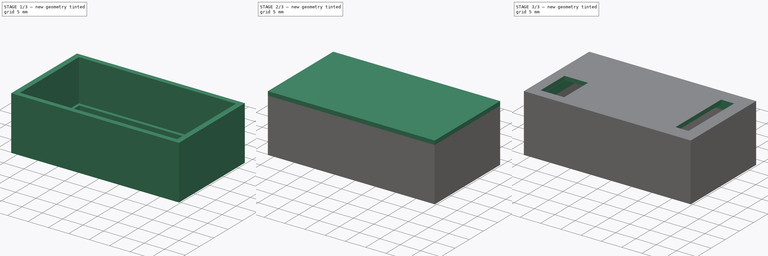
[diagram: build sequence overview — one tinted view per stage of 3, left to right]
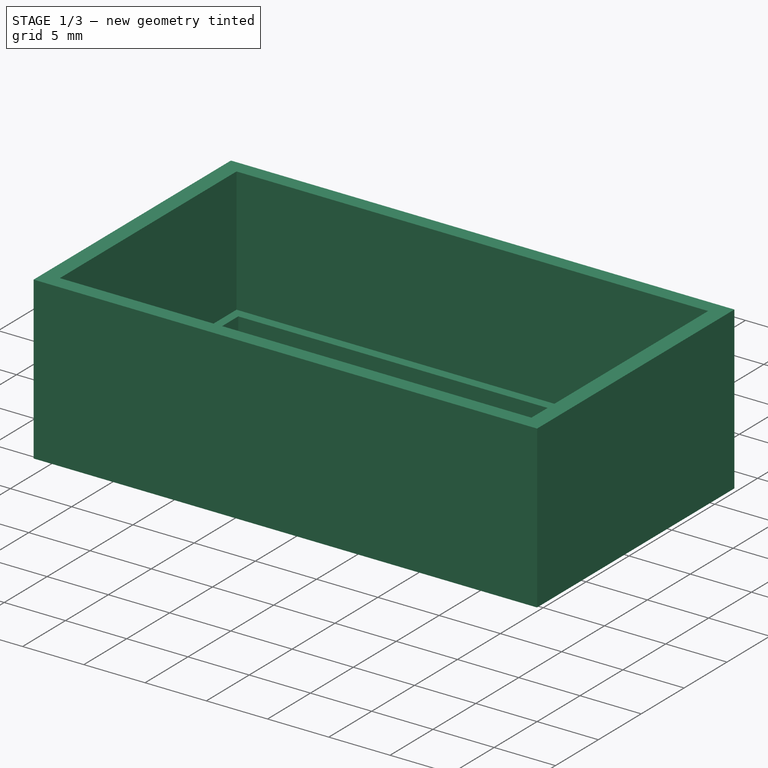
[diagram: stage 1 of 3 — iso view after this stage's code; geometry added in this stage tinted green]
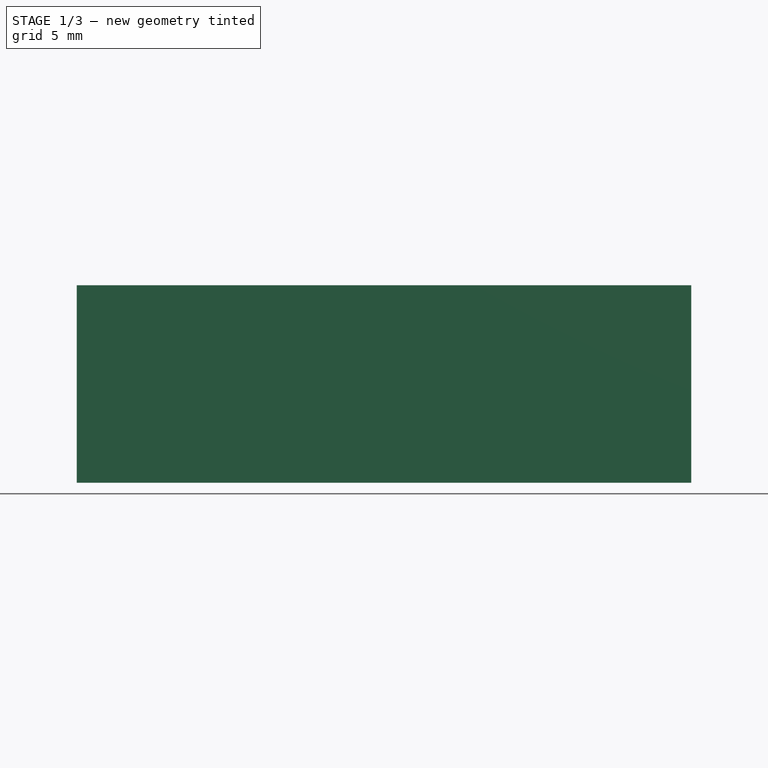
[diagram: stage 1 of 3 — front view after this stage's code; geometry added in this stage tinted green]
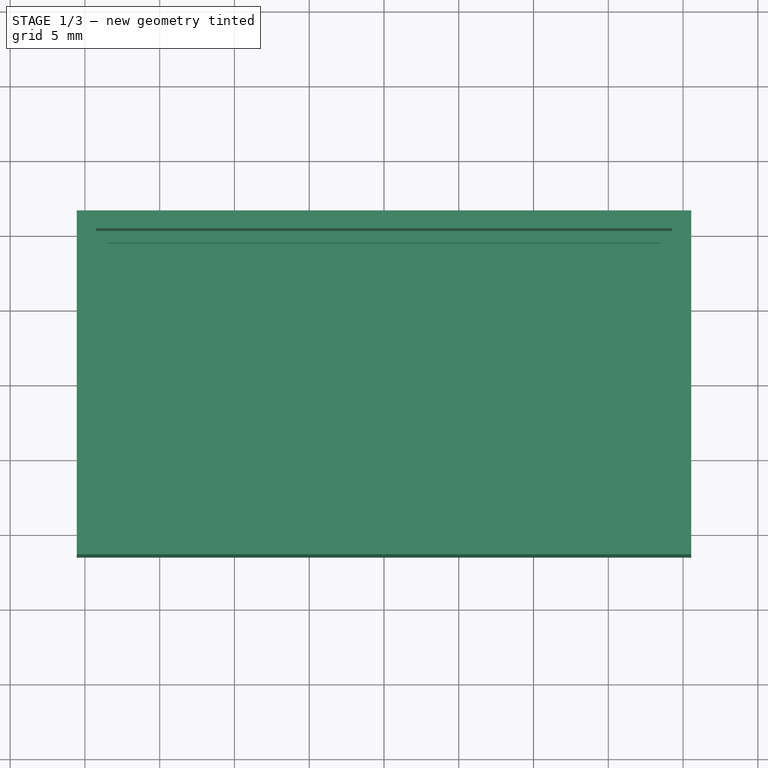
[diagram: stage 1 of 3 — top view after this stage's code; geometry added in this stage tinted green]
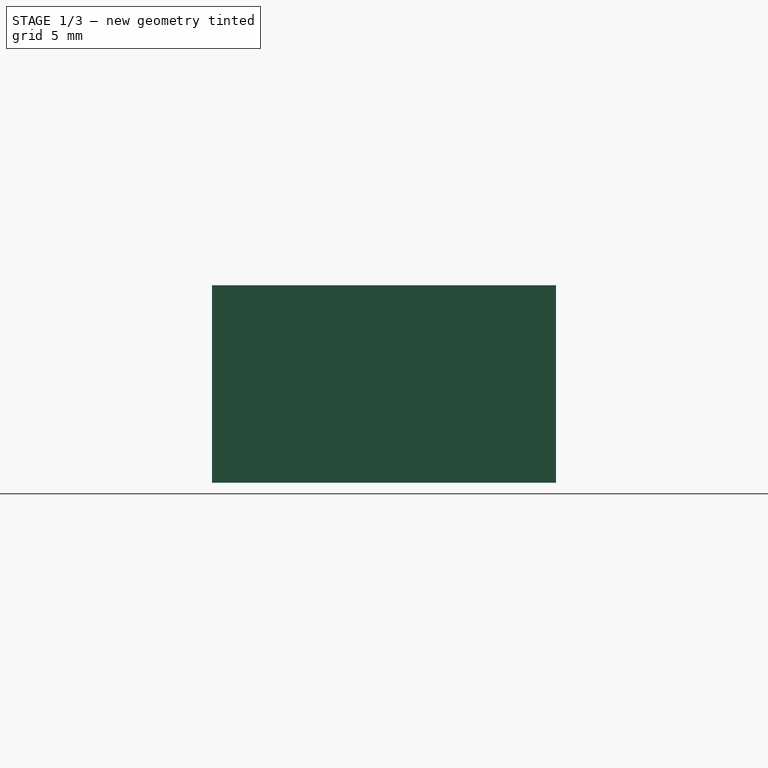
[diagram: stage 1 of 3 — right view after this stage's code; geometry added in this stage tinted green]
FCSTD DOCUMENT  (FreeCAD 1.0R39109 (Git))
Label: housing
License: All rights reserved
LicenseURL: https://en.wikipedia.org/wiki/All_rights_reserved
objects: Part::Feature×15, Sketcher::SketchObject×8, PartDesign::Pad×4, PartDesign::Pocket×4, PartDesign::Plane×3, PartDesign::Body×2, App::Part×1
note: 60 computed .brp shape members not serialized (recipe doc carries the construction recipe); baked Part::Feature solids carry a one-line shape summary decoded from their .brp

FEATURE [Sketcher::SketchObject] Sketch
  ArcFitTolerance = 1e-06
  AttachmentSupport = -> [XY_Plane]
  FullyConstrained = true
  MakeInternals = false
  MapMode = 5
  sketch-geometry (4):
    g0: LineSegment StartX=-18.55 StartY=-9.5 StartZ=0 EndX=18.55 EndY=-9.5 EndZ=0
    g1: LineSegment StartX=18.55 StartY=-9.5 StartZ=0 EndX=18.55 EndY=9.5 EndZ=0
    g2: LineSegment StartX=18.55 StartY=9.5 StartZ=0 EndX=-18.55 EndY=9.5 EndZ=0
    g3: LineSegment StartX=-18.55 StartY=9.5 StartZ=0 EndX=-18.55 EndY=-9.5 EndZ=0
  constraints (10):
    c: Coincident(g0,g1)
    c: Coincident(g1,g2)
    c: Coincident(g2,g3)
    c: Coincident(g3,g0)
    c: Horizontal(g2)
    c: Vertical(g3)
    c: DistanceY(g1,g1) = 19
    c: DistanceX(g0,g0) = 37.1
    c: Symmetric(g0,g1,g-1)
    c: Symmetric(g0,g0,g-2)
FEATURE [Part::Feature] Part__Feature  label="R_0805_2012Metric"
  Placement = pos=(140.532,-83.7194,1.595) rot=(0,0,1;1.5708rad)
  shape: bbox 1.2 x 2 x 0.45 mm, 26 faces (baked)
FEATURE [Part::Feature] Part__Feature001  label="R_0805_2012Metric001"
  Placement = pos=(143.051,-85.3089,1.595) rot=(0,0,1;1.5708rad)
  shape: bbox 1.2 x 2 x 0.45 mm, 26 faces (baked)
FEATURE [Part::Feature] Part__Feature002  label="SOIC-8_5.3x5.3mm_P1.27mm"
  Placement = pos=(124.397,-76.2,1.595) rot=(0,0,1;3.14159rad)
  shape: bbox 7.8 x 5.3 x 2.16 mm, 135 faces (baked)
FEATURE [Part::Feature] Part__Feature003  label="R_0805_2012Metric002"
  Placement = pos=(123.112,-80.6804,1.595) rot=(0,0,1;0rad)
  shape: bbox 2 x 1.2 x 0.45 mm, 26 faces (baked)
FEATURE [Part::Feature] Part__Feature004  label="PinHeader_1x06_P2.54mm_Vertical"
  Placement = pos=(149.294,-74.876,1.595) rot=(0,0,1;0rad)
  shape: bbox 2.54 x 15.24 x 11.54 mm, 148 faces (baked)
FEATURE [Part::Feature] Part__Feature005  label="PinHeader_2x03_P2.54mm_Vertical"
  Placement = pos=(116.84,-83.82,1.595) rot=(0,0,1;0rad)
  shape: bbox 5.08 x 7.62 x 11.54 mm, 130 faces (baked)
FEATURE [Part::Feature] Part__Feature006  label="CP_Elec_4x5.8"
  Placement = pos=(142.356,-76.7351,1.595) rot=(0,0,-1;1.5708rad)
  shape: bbox 5.462 x 5.738 x 5.8 mm, 41 faces (baked)
FEATURE [Part::Feature] Part__Feature007  label="SOT-223"
  Placement = pos=(135.433,-79.1206,1.595) rot=(0,0,-1;1.5708rad)
  shape: bbox 6.5 x 7 x 1.7 mm, 75 faces (baked)
FEATURE [Part::Feature] Part__Feature008  label="SOT-23"
  Placement = pos=(126.368,-88.1318,1.595) rot=(0,0,1;1.5708rad)
  shape: bbox 3 x 2.5 x 1.2 mm, 69 faces (baked)
FEATURE [Part::Feature] Part__Feature009  label="SOT-224"
  Placement = pos=(136.473,-85.6099,1.595) rot=(0,0,1;0rad)
  shape: bbox 2.5 x 3 x 1.2 mm, 69 faces (baked)
FEATURE [Part::Feature] Part__Feature010  label="R_0805_2012Metric003"
  Placement = pos=(132.335,-88.006,1.595) rot=(0,0,1;1.5708rad)
  shape: bbox 1.2 x 2 x 0.45 mm, 26 faces (baked)
FEATURE [Part::Feature] Part__Feature011  label="R_0805_2012Metric004"
  Placement = pos=(129.945,-88.0205,1.595) rot=(0,0,-1;1.5708rad)
  shape: bbox 1.2 x 2 x 0.45 mm, 26 faces (baked)
FEATURE [Part::Feature] Part__Feature012  label="C_0805_2012Metric"
  Placement = pos=(134.285,-73.1394,1.595) rot=(0,0,1;0rad)
  shape: bbox 2 x 1.25 x 1.25 mm, 28 faces (baked)
FEATURE [Part::Feature] Part__Feature013  label="SOT-225"
  Placement = pos=(127.188,-82.1797,1.595) rot=(0,0,-1;1.5708rad)
  shape: bbox 3 x 2.5 x 1.2 mm, 69 faces (baked)
FEATURE [Part::Feature] Part__Feature014  label="auto-acc-timer_PCB"
  shape: bbox 38.1 x 20.32 x 1.51 mm, 18 faces (baked)
FEATURE [App::Part] auto_acc_timer_1  label="auto-acc-timer 1"
  Group = -> [Part__Feature,Part__Feature001,Part__Feature002,Part__Feature003,Part__Feature004,Part__Feature005,Part__Feature006,Part__Feature007,Part__Feature008,Part__Feature009,Part__Feature010,Part__Feature011,Part__Feature012,Part__Feature013,Part__Feature014]
  Origin = -> Origin001
  Placement = pos=(-133.35,81.28,0) rot=(0,0,1;0rad)
FEATURE [PartDesign::Plane] DatumPlane
  AttachmentSupport = -> [Origin]
  Length = 60
  Placement = pos=(0,0,-3) rot=(0,0,1;0rad)
  ResizeMode = 0
  Width = 60
FEATURE [Sketcher::SketchObject] Sketch001
  ArcFitTolerance = 1e-06
  AttachmentSupport = -> [DatumPlane]
  FullyConstrained = true
  MakeInternals = false
  MapMode = 5
  Placement = pos=(0,0,-3) rot=(0,0,1;0rad)
  sketch-geometry (4):
    g0: LineSegment StartX=-20.55 StartY=11.5 StartZ=0 EndX=-20.55 EndY=-11.5 EndZ=0
    g1: LineSegment StartX=-20.55 StartY=-11.5 StartZ=0 EndX=20.55 EndY=-11.5 EndZ=0
    g2: LineSegment StartX=20.55 StartY=-11.5 StartZ=0 EndX=20.55 EndY=11.5 EndZ=0
    g3: LineSegment StartX=20.55 StartY=11.5 StartZ=0 EndX=-20.55 EndY=11.5 EndZ=0
  constraints (12):
    c: Coincident(g0,g1)
    c: Coincident(g1,g2)
    c: Coincident(g2,g3)
    c: Coincident(g3,g0)
    c: Vertical(g0)
    c: Vertical(g2)
    c: Horizontal(g1)
    c: Horizontal(g3)
    c: DistanceX(g3,g3) = 41.1
    c: DistanceY(g0,g0) = 23
    c: DistanceY(g-1,g0) = 11.5
    c: DistanceX(g0) = -20.55
FEATURE [PartDesign::Pad] Pad
  Direction = (0,0,1)
  Length = 13.2
  Length2 = 10
  Placement = pos=(0,0,-3) rot=(0,0,1;0rad)
  Profile = -> Sketch001
  ReferenceAxis = -> Sketch001 [N_Axis]
  Refine = true
  Suppressed = false
  Type = 0
FEATURE [Sketcher::SketchObject] Sketch002
  ArcFitTolerance = 1e-06
  AttachmentSupport = -> [XY_Plane]
  FullyConstrained = true
  MakeInternals = false
  MapMode = 5
  sketch-geometry (4):
    g0: LineSegment StartX=-19.25 StartY=10.3 StartZ=0 EndX=-19.25 EndY=-10.3 EndZ=0
    g1: LineSegment StartX=-19.25 StartY=-10.3 StartZ=0 EndX=19.25 EndY=-10.3 EndZ=0
    g2: LineSegment StartX=19.25 StartY=-10.3 StartZ=0 EndX=19.25 EndY=10.3 EndZ=0
    g3: LineSegment StartX=19.25 StartY=10.3 StartZ=0 EndX=-19.25 EndY=10.3 EndZ=0
  constraints (10):
    c: Coincident(g0,g1)
    c: Coincident(g1,g2)
    c: Coincident(g2,g3)
    c: Coincident(g3,g0)
    c: Vertical(g2)
    c: Horizontal(g3)
    c: DistanceY(g0,g0) = 20.6
    c: DistanceX(g1,g1) = 38.5
    c: Symmetric(g0,g1,g-2)
    c: Symmetric(g0,g0,g-1)
FEATURE [PartDesign::Pocket] Pocket
  BaseFeature = -> Pad
  Direction = (0,0,-1)
  Length = 10
  Length2 = 5
  Placement = pos=(0,0,-3) rot=(0,0,1;0rad)
  Profile = -> Sketch002
  ReferenceAxis = -> Sketch002 [N_Axis]
  Refine = true
  Reversed = true
  Suppressed = false
  Type = 1
FEATURE [PartDesign::Pocket] Pocket001
  BaseFeature = -> Pocket
  Direction = (0,0,-1)
  Length = 2
  Length2 = 5
  Placement = pos=(0,0,-3) rot=(0,0,1;0rad)
  Profile = -> Sketch
  ReferenceAxis = -> Sketch [N_Axis]
  Refine = true
  Suppressed = false
  Type = 0
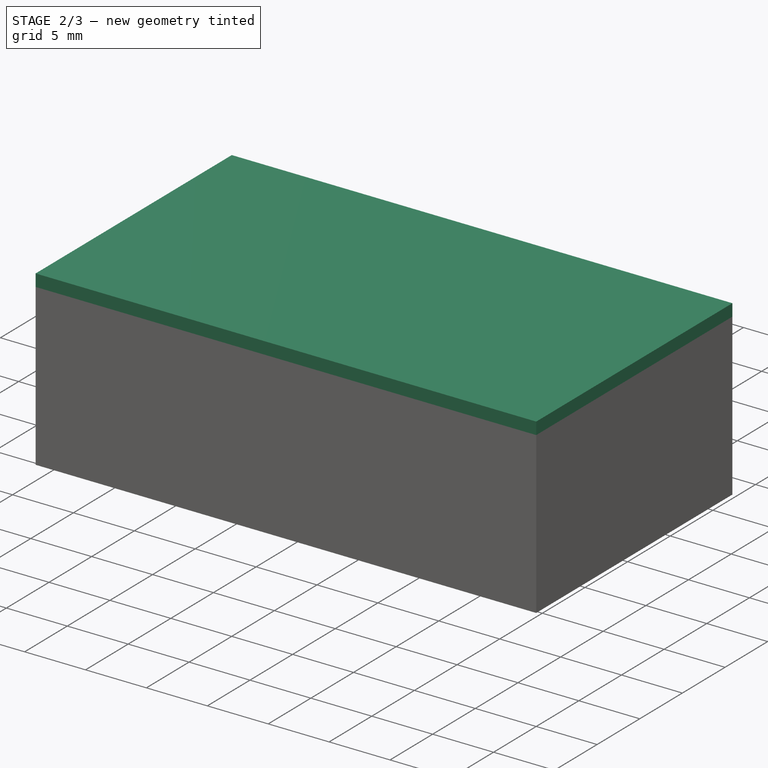
[diagram: stage 2 of 3 — iso view after this stage's code; geometry added in this stage tinted green]
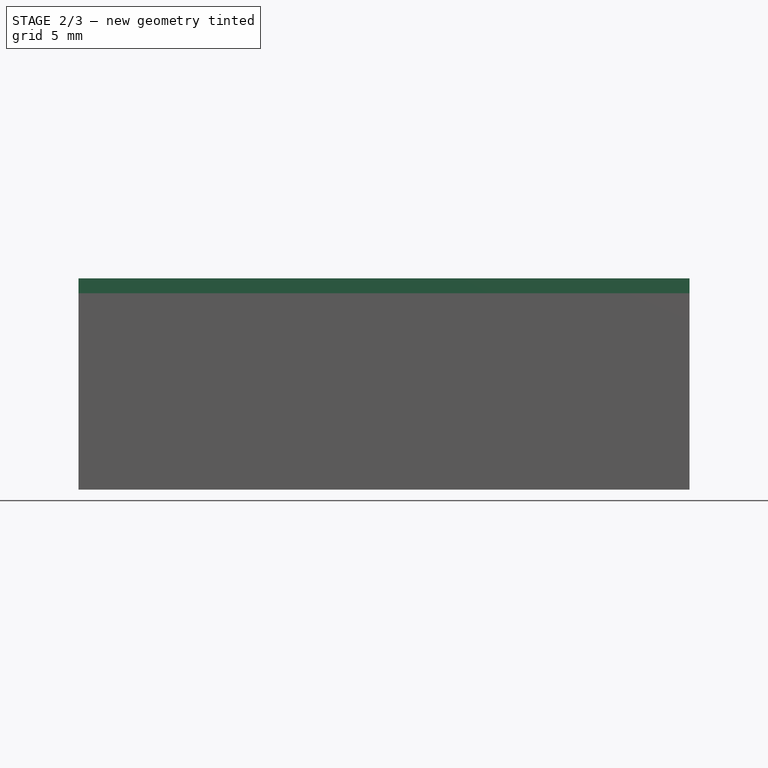
[diagram: stage 2 of 3 — front view after this stage's code; geometry added in this stage tinted green]
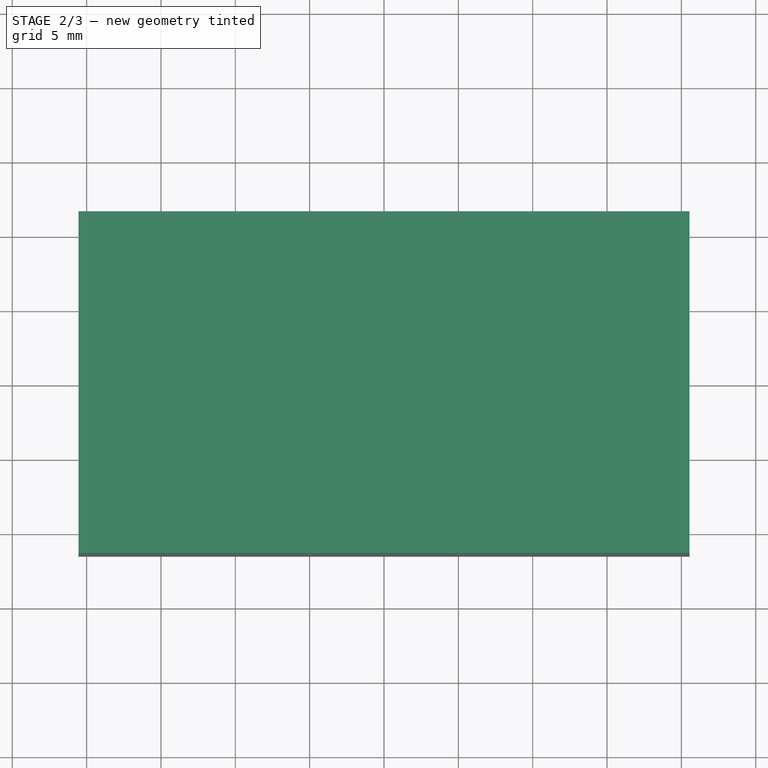
[diagram: stage 2 of 3 — top view after this stage's code; geometry added in this stage tinted green]
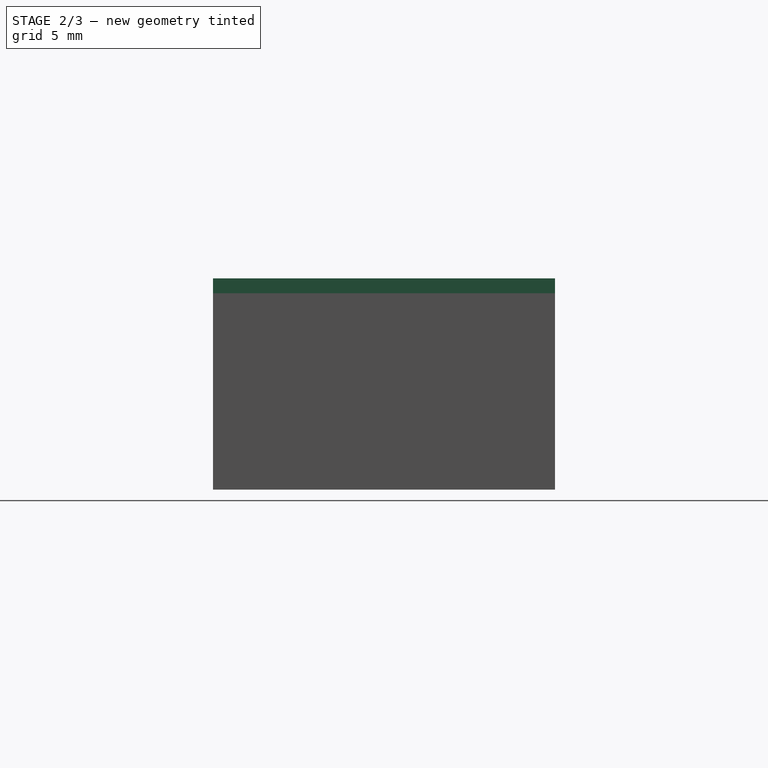
[diagram: stage 2 of 3 — right view after this stage's code; geometry added in this stage tinted green]
FEATURE [PartDesign::Plane] DatumPlane001
  Length = 60
  MapMode = 53
  Placement = pos=(0,0,10.2) rot=(0,0,1;0rad)
  ResizeMode = 0
  Width = 60
FEATURE [Sketcher::SketchObject] Sketch003
  ArcFitTolerance = 1e-06
  AttachmentSupport = -> [DatumPlane001]
  FullyConstrained = true
  MakeInternals = false
  MapMode = 5
  Placement = pos=(0,0,10.2) rot=(0,0,1;0rad)
  sketch-geometry (4):
    g0: LineSegment StartX=-20.55 StartY=11.5 StartZ=0 EndX=-20.55 EndY=-11.5 EndZ=0
    g1: LineSegment StartX=-20.55 StartY=-11.5 StartZ=0 EndX=20.55 EndY=-11.5 EndZ=0
    g2: LineSegment StartX=20.55 StartY=-11.5 StartZ=0 EndX=20.55 EndY=11.5 EndZ=0
    g3: LineSegment StartX=20.55 StartY=11.5 StartZ=0 EndX=-20.55 EndY=11.5 EndZ=0
  constraints (10):
    c: Coincident(g0,g1)
    c: Coincident(g1,g2)
    c: Coincident(g2,g3)
    c: Coincident(g3,g0)
    c: Vertical(g2)
    c: Horizontal(g1)
    c: Symmetric(g0,g2,g-2)
    c: Symmetric(g0,g0,g-1)
    c: DistanceX(g3,g3) = 41.1
    c: DistanceY(g0,g0) = 23
FEATURE [PartDesign::Pad] Pad001
  Direction = (0,0,1)
  Length = 1
  Length2 = 10
  Placement = pos=(0,0,10.2) rot=(0,0,1;0rad)
  Profile = -> Sketch003
  ReferenceAxis = -> Sketch003 [N_Axis]
  Refine = true
  Suppressed = false
  Type = 0
FEATURE [PartDesign::Body] Body001
  AllowCompound = false
  Group = -> [DatumPlane001,Sketch003,Pad001,Sketch004,Pad002,Sketch005,Pocket002,Sketch006,Pocket003]
  Origin = -> Origin002
  Tip = -> Pocket003
FEATURE [PartDesign::Plane] DatumPlane002
  Length = 60
  MapMode = 53
  Placement = pos=(0,0,1.6) rot=(0,0,1;0rad)
  ResizeMode = 0
  Width = 60
FEATURE [Sketcher::SketchObject] Sketch007
  ArcFitTolerance = 1e-06
  AttachmentSupport = -> [DatumPlane002]
  FullyConstrained = true
  MakeInternals = false
  MapMode = 5
  Placement = pos=(0,0,1.6) rot=(0,0,1;0rad)
  sketch-geometry (16):
    g0: LineSegment StartX=-19.25 StartY=1.5 StartZ=0 EndX=-19.25 EndY=-1.5 EndZ=0
    g1: LineSegment StartX=-19.25 StartY=-1.5 StartZ=0 EndX=-19.1 EndY=-1.5 EndZ=0
    g2: LineSegment StartX=-19.1 StartY=-1.5 StartZ=0 EndX=-19.1 EndY=1.5 EndZ=0
    g3: LineSegment StartX=-19.1 StartY=1.5 StartZ=0 EndX=-19.25 EndY=1.5 EndZ=0
    g4: LineSegment StartX=-1.5 StartY=10.3 StartZ=0 EndX=-1.5 EndY=10.15 EndZ=0
    g5: LineSegment StartX=-1.5 StartY=10.15 StartZ=0 EndX=1.5 EndY=10.15 EndZ=0
    g6: LineSegment StartX=1.5 StartY=10.15 StartZ=0 EndX=1.5 EndY=10.3 EndZ=0
    g7: LineSegment StartX=1.5 StartY=10.3 StartZ=0 EndX=-1.5 EndY=10.3 EndZ=0
    g8: LineSegment StartX=-1.5 StartY=-10.3 StartZ=0 EndX=1.5 EndY=-10.3 EndZ=0
    g9: LineSegment StartX=1.5 StartY=-10.3 StartZ=0 EndX=1.5 EndY=-10.15 EndZ=0
    g10: LineSegment StartX=1.5 StartY=-10.15 StartZ=0 EndX=-1.5 EndY=-10.15 EndZ=0
    g11: LineSegment StartX=-1.5 StartY=-10.15 StartZ=0 EndX=-1.5 EndY=-10.3 EndZ=0
    g12: LineSegment StartX=19.1 StartY=1.5 StartZ=0 EndX=19.1 EndY=-1.5 EndZ=0
    g13: LineSegment StartX=19.1 StartY=-1.5 StartZ=0 EndX=19.25 EndY=-1.5 EndZ=0
    g14: LineSegment StartX=19.25 StartY=-1.5 StartZ=0 EndX=19.25 EndY=1.5 EndZ=0
    g15: LineSegment StartX=19.25 StartY=1.5 StartZ=0 EndX=19.1 EndY=1.5 EndZ=0
  constraints (42):
    c: Coincident(g0,g1)
    c: Coincident(g1,g2)
    c: Coincident(g2,g3)
    c: Coincident(g3,g0)
    c: Vertical(g2)
    c: Horizontal(g1)
    c: Horizontal(g3)
    c: Coincident(g4,g5)
    c: Coincident(g5,g6)
    c: Coincident(g6,g7)
    c: Coincident(g7,g4)
    c: Vertical(g4)
    c: Vertical(g6)
    c: Horizontal(g5)
    c: Horizontal(g7)
    c: Coincident(g8,g9)
    c: Coincident(g9,g10)
    c: Coincident(g10,g11)
    c: Coincident(g11,g8)
    c: Horizontal(g10)
    c: Vertical(g9)
    c: Vertical(g11)
    c: Symmetric(g8,g8,g-2)
    c: DistanceY(g11,g11) = 0.15
    c: DistanceY(g8) = -10.3
    c: DistanceX(g8,g8) = 3
    c: Symmetric(g4,g8,g-1)
    c: Symmetric(g9,g5,g-1)
    c: Symmetric(g0,g0,g-1)
    c: DistanceY(g0,g0) = 3
    c: DistanceX(g3,g3) = 0.15
    c: DistanceX(g0,g-1) = 19.25
    c: Coincident(g12,g13)
    c: Coincident(g13,g14)
    c: Coincident(g14,g15)
    c: Coincident(g15,g12)
    c: Vertical(g12)
    c: Vertical(g14)
    c: Horizontal(g13)
    c: Horizontal(g15)
    c: Symmetric(g13,g0,g-2)
    c: Symmetric(g12,g2,g-2)
FEATURE [PartDesign::Pad] Pad003
  BaseFeature = -> Pocket001
  Direction = (0,0,1)
  Length = 2
  Length2 = 10
  Placement = pos=(0,0,-3) rot=(0,0,1;0rad)
  Profile = -> Sketch007
  ReferenceAxis = -> Sketch007 [N_Axis]
  Refine = true
  Suppressed = false
  Type = 0
FEATURE [PartDesign::Body] Body
  AllowCompound = false
  Group = -> [DatumPlane,Sketch,Sketch001,Pad,Sketch002,Pocket,Pocket001,DatumPlane002,Sketch007,Pad003]
  Origin = -> Origin
  Tip = -> Pad003
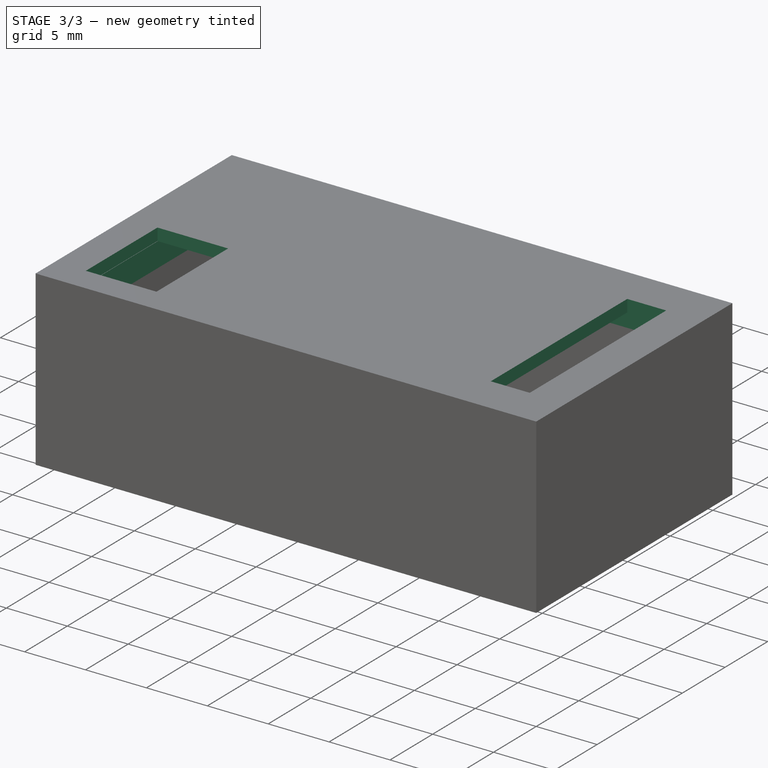
[diagram: stage 3 of 3 — iso view after this stage's code; geometry added in this stage tinted green]
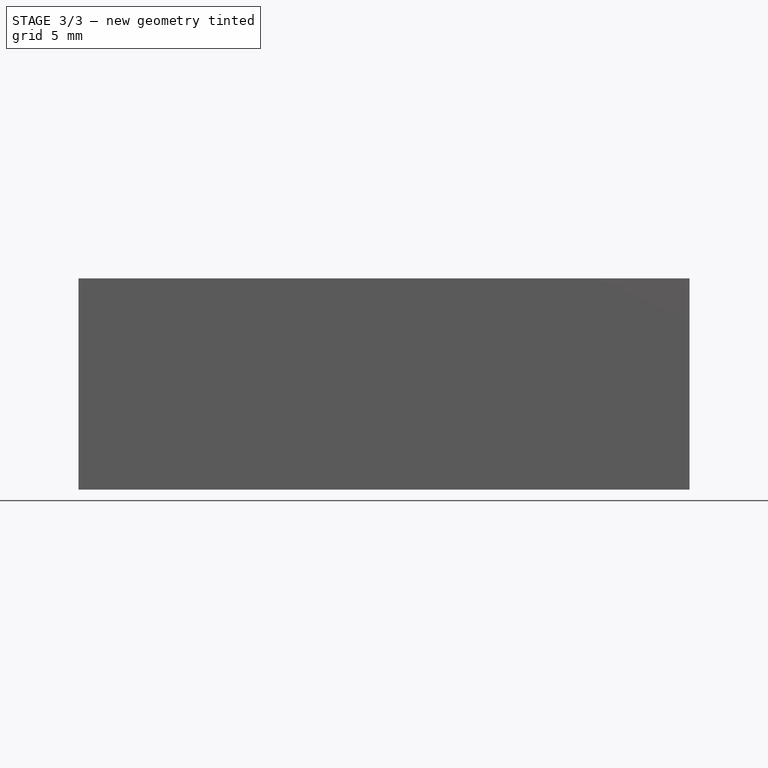
[diagram: stage 3 of 3 — front view after this stage's code; geometry added in this stage tinted green]
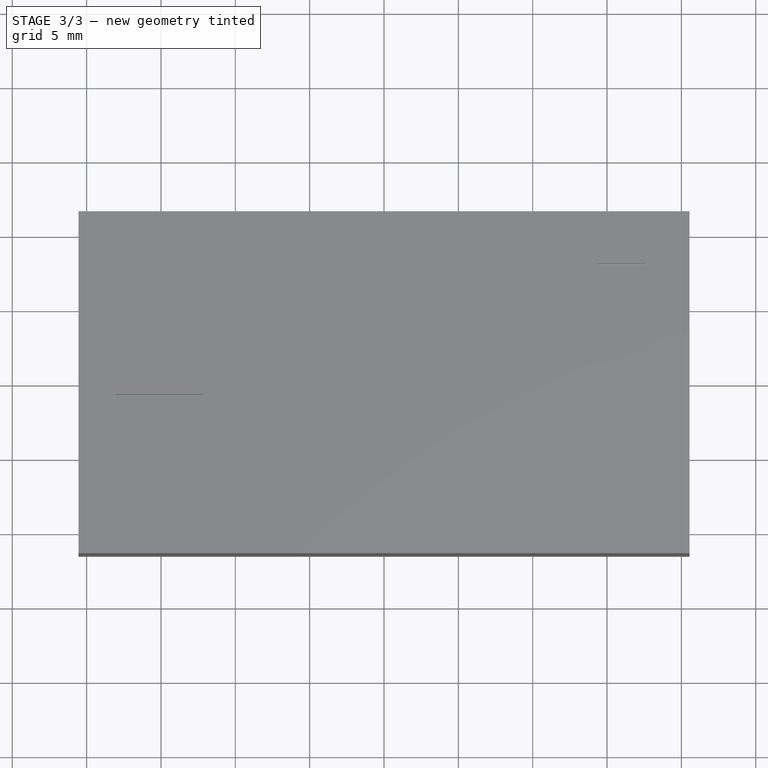
[diagram: stage 3 of 3 — top view after this stage's code; geometry added in this stage tinted green]
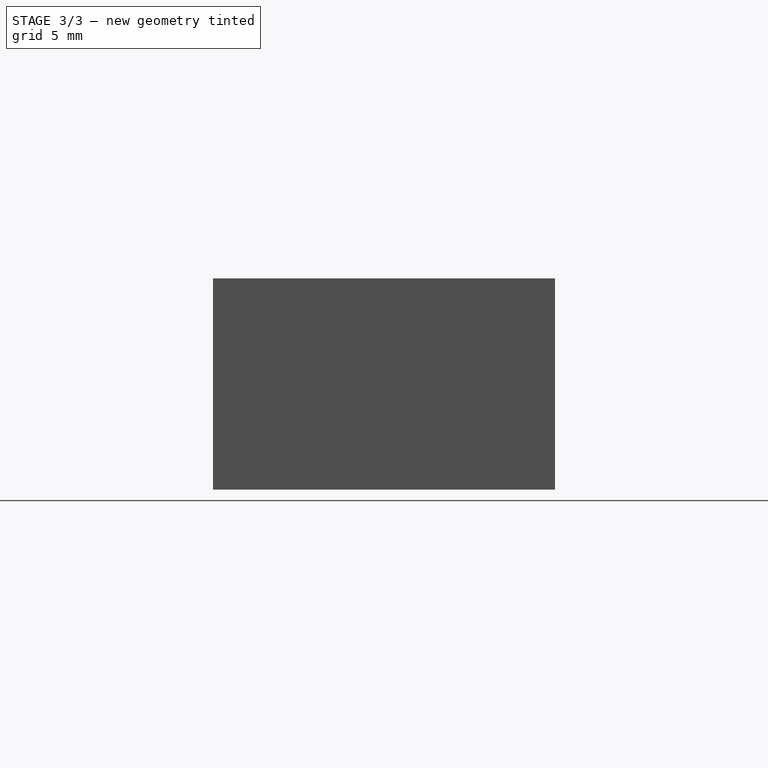
[diagram: stage 3 of 3 — right view after this stage's code; geometry added in this stage tinted green]
FEATURE [Sketcher::SketchObject] Sketch004
  ArcFitTolerance = 1e-06
  AttachmentSupport = -> [DatumPlane001]
  FullyConstrained = true
  MakeInternals = false
  MapMode = 5
  Placement = pos=(0,0,10.2) rot=(0,0,1;0rad)
  sketch-geometry (4):
    g0: LineSegment StartX=-19.25 StartY=10.3 StartZ=0 EndX=-19.25 EndY=-10.3 EndZ=0
    g1: LineSegment StartX=-19.25 StartY=-10.3 StartZ=0 EndX=19.25 EndY=-10.3 EndZ=0
    g2: LineSegment StartX=19.25 StartY=-10.3 StartZ=0 EndX=19.25 EndY=10.3 EndZ=0
    g3: LineSegment StartX=19.25 StartY=10.3 StartZ=0 EndX=-19.25 EndY=10.3 EndZ=0
  constraints (10):
    c: Coincident(g0,g1)
    c: Coincident(g1,g2)
    c: Coincident(g2,g3)
    c: Coincident(g3,g0)
    c: Vertical(g2)
    c: Horizontal(g1)
    c: Symmetric(g0,g0,g-1)
    c: Symmetric(g0,g2,g-2)
    c: DistanceX(g3,g3) = 38.5
    c: DistanceY(g0,g0) = 20.6
FEATURE [PartDesign::Pad] Pad002
  BaseFeature = -> Pad001
  Direction = (0,0,1)
  Length = 2
  Length2 = 10
  Placement = pos=(0,0,10.2) rot=(0,0,1;0rad)
  Profile = -> Sketch004
  ReferenceAxis = -> Sketch004 [N_Axis]
  Refine = true
  Reversed = true
  Suppressed = false
  Type = 0
FEATURE [Sketcher::SketchObject] Sketch005
  ArcFitTolerance = 1e-06
  AttachmentSupport = -> [DatumPlane001]
  FullyConstrained = true
  MakeInternals = false
  MapMode = 5
  Placement = pos=(0,0,10.2) rot=(0,0,1;0rad)
  sketch-geometry (4):
    g0: LineSegment StartX=-18 StartY=9.5 StartZ=0 EndX=-18 EndY=-9.5 EndZ=0
    g1: LineSegment StartX=-18 StartY=-9.5 StartZ=0 EndX=18 EndY=-9.5 EndZ=0
    g2: LineSegment StartX=18 StartY=-9.5 StartZ=0 EndX=18 EndY=9.5 EndZ=0
    g3: LineSegment StartX=18 StartY=9.5 StartZ=0 EndX=-18 EndY=9.5 EndZ=0
  constraints (10):
    c: Coincident(g0,g1)
    c: Coincident(g1,g2)
    c: Coincident(g2,g3)
    c: Coincident(g3,g0)
    c: Vertical(g2)
    c: Horizontal(g1)
    c: Symmetric(g2,g0,g-2)
    c: Symmetric(g0,g0,g-1)
    c: DistanceX(g3,g3) = 36
    c: DistanceY(g0,g0) = 19
FEATURE [PartDesign::Pocket] Pocket002
  BaseFeature = -> Pad002
  Direction = (0,0,-1)
  Length = 5
  Length2 = 5
  Placement = pos=(0,0,10.2) rot=(0,0,1;0rad)
  Profile = -> Sketch005
  ReferenceAxis = -> Sketch005 [N_Axis]
  Refine = true
  Suppressed = false
  Type = 1
FEATURE [Sketcher::SketchObject] Sketch006
  ArcFitTolerance = 1e-06
  AttachmentSupport = -> [DatumPlane001]
  FullyConstrained = false
  MakeInternals = false
  MapMode = 5
  Placement = pos=(0,0,10.2) rot=(0,0,1;0rad)
  sketch-geometry (8):
    g0: LineSegment StartX=14.369 StartY=8 StartZ=0 EndX=14.369 EndY=-8 EndZ=0
    g1: LineSegment StartX=14.369 StartY=-8 StartZ=0 EndX=17.569 EndY=-8 EndZ=0
    g2: LineSegment StartX=17.569 StartY=-8 StartZ=0 EndX=17.569 EndY=8 EndZ=0
    g3: LineSegment StartX=17.569 StartY=8 StartZ=0 EndX=14.369 EndY=8 EndZ=0
    g4: LineSegment StartX=-18.0273 StartY=-0.817358 StartZ=0 EndX=-18.0273 EndY=-9.21736 EndZ=0
    g5: LineSegment StartX=-18.0273 StartY=-9.21736 StartZ=0 EndX=-12.2273 EndY=-9.21736 EndZ=0
    g6: LineSegment StartX=-12.2273 StartY=-9.21736 StartZ=0 EndX=-12.2273 EndY=-0.817358 EndZ=0
    g7: LineSegment StartX=-12.2273 StartY=-0.817358 StartZ=0 EndX=-18.0273 EndY=-0.817358 EndZ=0
  constraints (20):
    c: Coincident(g0,g1)
    c: Coincident(g1,g2)
    c: Coincident(g2,g3)
    c: Coincident(g3,g0)
    c: Vertical(g0)
    c: Horizontal(g1)
    c: Horizontal(g3)
    c: Symmetric(g2,g1,g-1)
    c: DistanceX(g3,g3) = 3.2
    c: DistanceY(g0,g0) = 16
    c: Coincident(g4,g5)
    c: Coincident(g5,g6)
    c: Coincident(g6,g7)
    c: Coincident(g7,g4)
    c: Vertical(g4)
    c: Vertical(g6)
    c: Horizontal(g5)
    c: Horizontal(g7)
    c: DistanceY(g4,g4) = 8.4
    c: DistanceX(g5,g5) = 5.8
FEATURE [PartDesign::Pocket] Pocket003
  BaseFeature = -> Pocket002
  Direction = (0,0,-1)
  Length = 5
  Length2 = 5
  Placement = pos=(0,0,10.2) rot=(0,0,1;0rad)
  Profile = -> Sketch006
  ReferenceAxis = -> Sketch006 [N_Axis]
  Refine = true
  Reversed = true
  Suppressed = false
  Type = 1
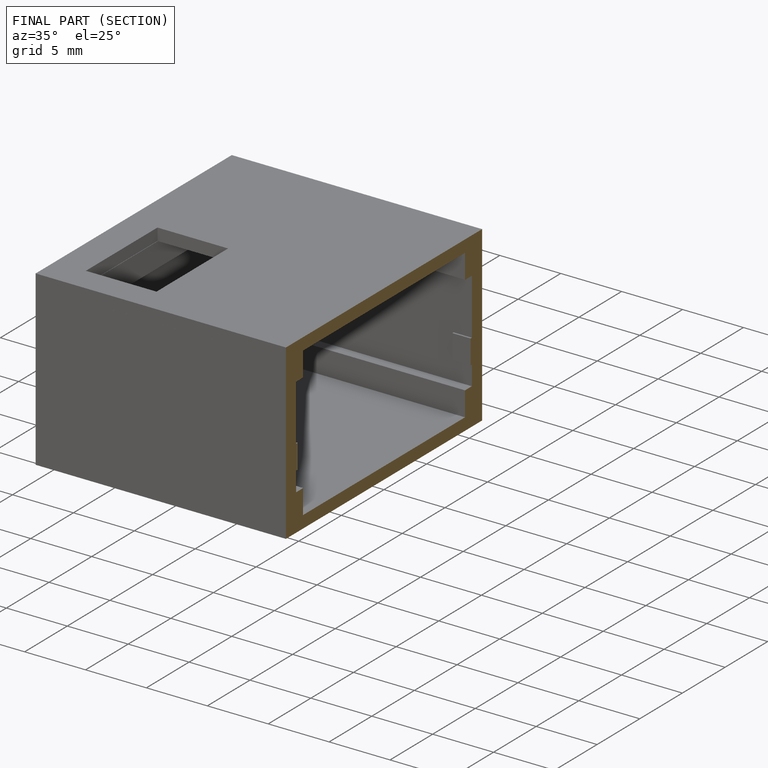
[diagram: finished part — half-section view (interior)]
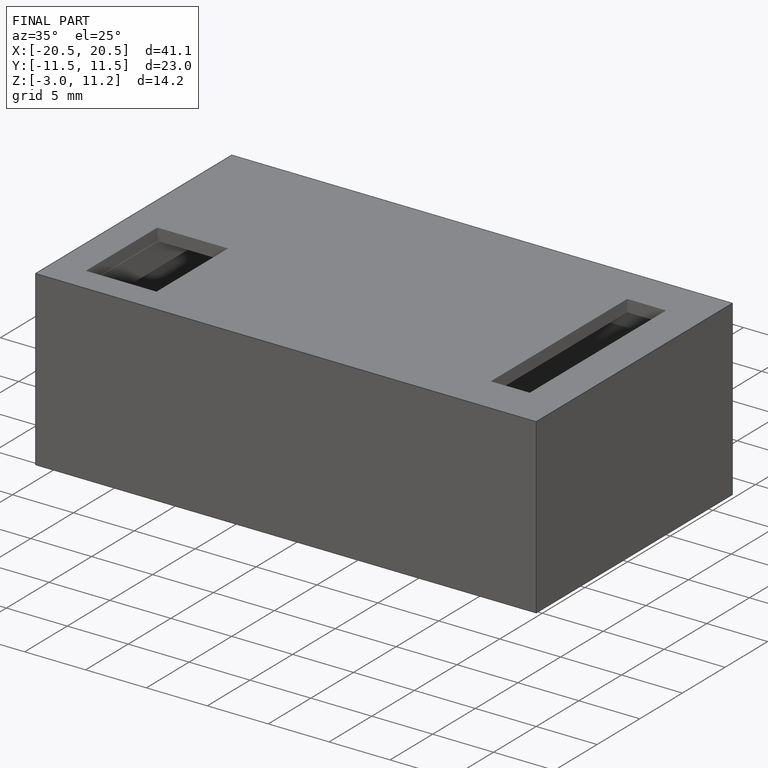
[diagram: finished part — iso view with bounding-box wireframe]
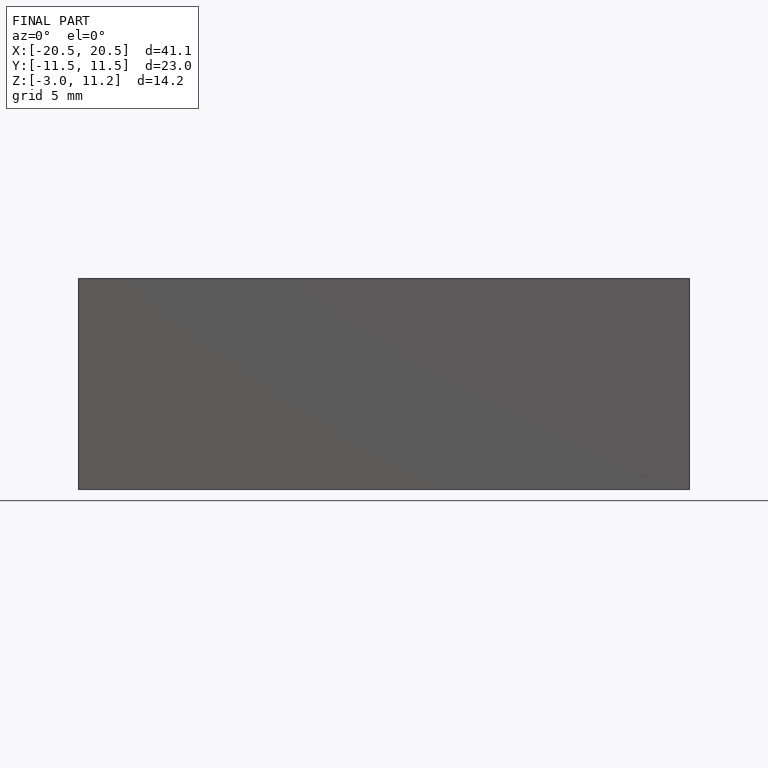
[diagram: finished part — front view with bounding-box wireframe]
